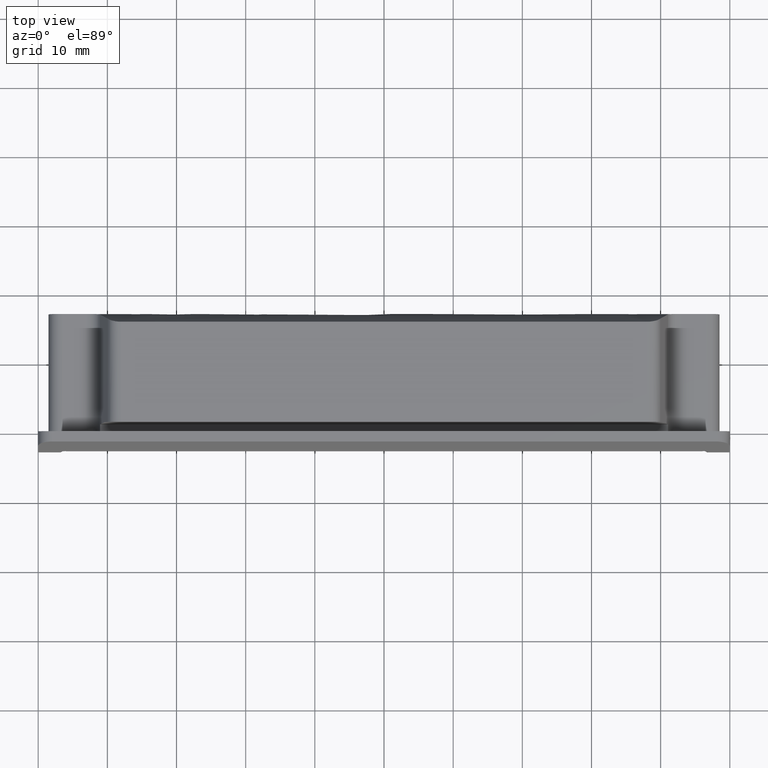
[diagram: clean part render]
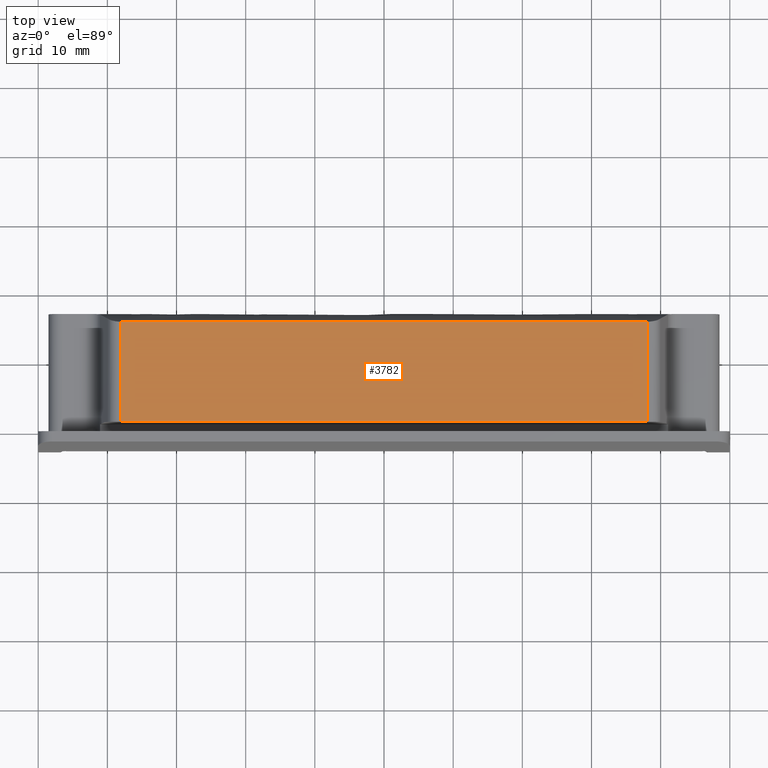
[diagram: same view with one face highlighted and labeled with its STEP entity id]
A machine part, top view. The second image highlights one B-rep face of the part: STEP entity #3782.
In plain terms, the highlighted face is a freeform B-spline surface patch.
Its self-contained STEP definition (entity closure, byte-faithful):
#213=CARTESIAN_POINT('',(-38.022851075579148,15.770552816080301,-0.000000092986828));
#214=VERTEX_POINT('',#213);
#249=CARTESIAN_POINT('',(-38.022851075579148,1.300000000000096,0.0));
#250=VERTEX_POINT('',#249);
#264=CARTESIAN_POINT('',(-38.022851075579148,15.770552816080301,-0.000000092986828));
#265=CARTESIAN_POINT('',(-38.022851075579148,1.300000000000096,0.0));
#266=QUASI_UNIFORM_CURVE('',1,(#264,#265),.UNSPECIFIED.,.F.,.U.);
#267=EDGE_CURVE('',#214,#250,#266,.T.);
#286=CARTESIAN_POINT('',(38.022851075579148,15.770552816080301,-0.000000092986828));
#287=VERTEX_POINT('',#286);
#311=CARTESIAN_POINT('',(38.022851075579148,1.300000000000096,0.0));
#312=VERTEX_POINT('',#311);
#313=CARTESIAN_POINT('',(38.022851075579148,1.300000000000096,0.0));
#314=CARTESIAN_POINT('',(38.022851075579148,15.770552816080301,-0.000000092986828));
#315=QUASI_UNIFORM_CURVE('',1,(#313,#314),.UNSPECIFIED.,.F.,.U.);
#316=EDGE_CURVE('',#312,#287,#315,.T.);
#3649=CARTESIAN_POINT('',(38.022851075579148,1.300000000000096,0.0));
#3650=CARTESIAN_POINT('',(-38.022851075579148,1.300000000000096,0.0));
#3651=QUASI_UNIFORM_CURVE('',1,(#3649,#3650),.UNSPECIFIED.,.F.,.U.);
#3652=EDGE_CURVE('',#312,#250,#3651,.T.);
#3760=CARTESIAN_POINT('',(38.022851075579148,15.770552816080301,-0.000000092986828));
#3761=CARTESIAN_POINT('',(-38.022851075579148,15.770552816080301,-0.000000092986828));
#3762=QUASI_UNIFORM_CURVE('',1,(#3760,#3761),.UNSPECIFIED.,.F.,.U.);
#3763=EDGE_CURVE('',#287,#214,#3762,.T.);
#3771=CARTESIAN_POINT('',(-41.821332765086879,0.577195830743412,0.0));
#3772=CARTESIAN_POINT('',(41.821330045480643,0.577195830743412,0.0));
#3773=CARTESIAN_POINT('',(-41.821332765086879,16.493356209076040,0.0));
#3774=CARTESIAN_POINT('',(41.821330045480643,16.493356209076040,0.0));
#3775=B_SPLINE_SURFACE_WITH_KNOTS('',1,1,((#3771,#3773),(#3772,#3774)),.UNSPECIFIED.,.F.,.F.,.U.,(2,2),(2,2),(0.0,83.642662810567515),(0.0,15.916160378332631),.UNSPECIFIED.);
#3776=ORIENTED_EDGE('',*,*,#3652,.F.);
#3777=ORIENTED_EDGE('',*,*,#316,.T.);
#3778=ORIENTED_EDGE('',*,*,#3763,.T.);
#3779=ORIENTED_EDGE('',*,*,#267,.T.);
#3780=EDGE_LOOP('',(#3776,#3777,#3778,#3779));
#3781=FACE_OUTER_BOUND('',#3780,.T.);
#3782=ADVANCED_FACE('',(#3781),#3775,.T.);